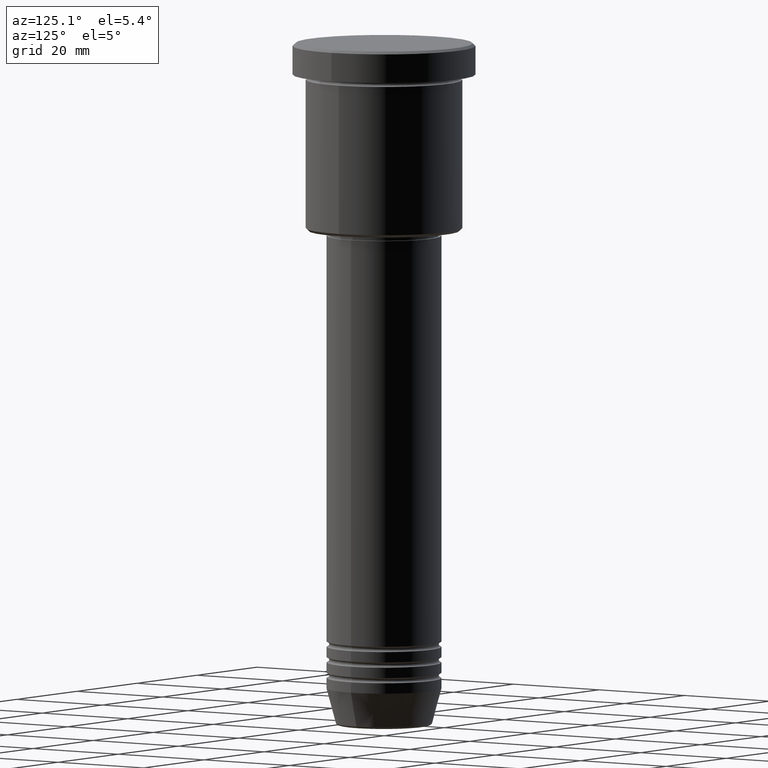
[diagram: clean part render]
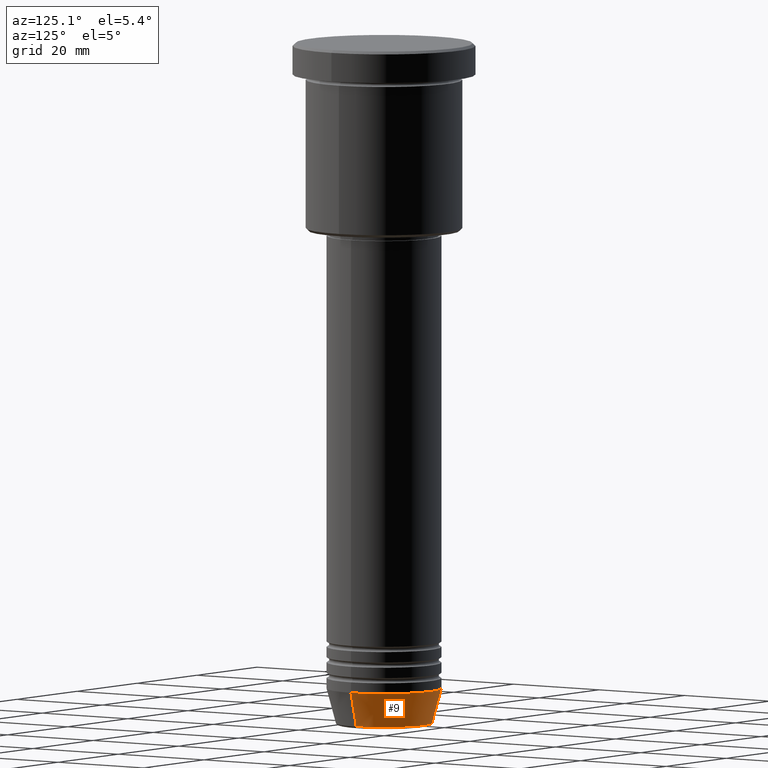
[diagram: same view with one face highlighted and labeled with its STEP entity id]
A machine part, auxiliary view. The second image highlights one B-rep face of the part: STEP entity #9.
In plain terms, the highlighted conical surface has half-angle 15 deg.
Its self-contained STEP definition (entity closure, byte-faithful):
#9 = ADVANCED_FACE ( 'NONE', ( #492 ), #951, .T. ) ;
#16 = VERTEX_POINT ( 'NONE', #1140 ) ;
#42 = CARTESIAN_POINT ( 'NONE',  ( 0.000000000000000000, 0.000000000000000000, -124.0000000000000000 ) ) ;
#71 = AXIS2_PLACEMENT_3D ( 'NONE', #969, #500, #575 ) ;
#81 = CARTESIAN_POINT ( 'NONE',  ( 0.000000000000000000, 0.000000000000000000, -124.0000000000000000 ) ) ;
#115 = ORIENTED_EDGE ( 'NONE', *, *, #559, .T. ) ;
#165 = VERTEX_POINT ( 'NONE', #961 ) ;
#304 = CARTESIAN_POINT ( 'NONE',  ( 11.00000000000000000, 0.000000000000000000, -124.0000000000000000 ) ) ;
#316 = DIRECTION ( 'NONE',  ( -0.000000000000000000, -0.000000000000000000, 1.000000000000000000 ) ) ;
#348 = CARTESIAN_POINT ( 'NONE',  ( -9.223655072137187716, 1.238341722557647004E-15, -130.6294095225512422 ) ) ;
#355 = LINE ( 'NONE', #1110, #506 ) ;
#379 = DIRECTION ( 'NONE',  ( 0.2588190451025213501, 0.000000000000000000, 0.9659258262890680902 ) ) ;
#389 = AXIS2_PLACEMENT_3D ( 'NONE', #81, #316, #671 ) ;
#407 = DIRECTION ( 'NONE',  ( 1.000000000000000000, 0.000000000000000000, 0.000000000000000000 ) ) ;
#492 = FACE_OUTER_BOUND ( 'NONE', #1037, .T. ) ;
#498 = DIRECTION ( 'NONE',  ( -0.000000000000000000, -0.000000000000000000, 1.000000000000000000 ) ) ;
#500 = DIRECTION ( 'NONE',  ( -0.000000000000000000, -0.000000000000000000, 1.000000000000000000 ) ) ;
#506 = VECTOR ( 'NONE', #379, 1000.000000000000000 ) ;
#559 = EDGE_CURVE ( 'NONE', #165, #702, #667, .T. ) ;
#575 = DIRECTION ( 'NONE',  ( 1.000000000000000000, 0.000000000000000000, 0.000000000000000000 ) ) ;
#595 = EDGE_CURVE ( 'NONE', #928, #16, #953, .T. ) ;
#657 = VECTOR ( 'NONE', #664, 1000.000000000000000 ) ;
#664 = DIRECTION ( 'NONE',  ( -0.2588190451025213501, 3.169619151431772337E-17, 0.9659258262890680902 ) ) ;
#667 = CIRCLE ( 'NONE', #71, 9.223655072137187716 ) ;
#671 = DIRECTION ( 'NONE',  ( 1.000000000000000000, 0.000000000000000000, 0.000000000000000000 ) ) ;
#702 = VERTEX_POINT ( 'NONE', #348 ) ;
#748 = AXIS2_PLACEMENT_3D ( 'NONE', #42, #498, #407 ) ;
#775 = EDGE_CURVE ( 'NONE', #165, #928, #355, .T. ) ;
#906 = ORIENTED_EDGE ( 'NONE', *, *, #595, .F. ) ;
#928 = VERTEX_POINT ( 'NONE', #304 ) ;
#930 = ORIENTED_EDGE ( 'NONE', *, *, #948, .T. ) ;
#946 = LINE ( 'NONE', #1137, #657 ) ;
#948 = EDGE_CURVE ( 'NONE', #702, #16, #946, .T. ) ;
#951 = CONICAL_SURFACE ( 'NONE', #748, 11.00000000000000000, 0.2617993877991500740 ) ;
#953 = CIRCLE ( 'NONE', #389, 11.00000000000000000 ) ;
#961 = CARTESIAN_POINT ( 'NONE',  ( 9.223655072137187716, 0.000000000000000000, -130.6294095225512422 ) ) ;
#969 = CARTESIAN_POINT ( 'NONE',  ( 0.000000000000000000, 0.000000000000000000, -130.6294095225512422 ) ) ;
#1037 = EDGE_LOOP ( 'NONE', ( #115, #930, #906, #1078 ) ) ;
#1078 = ORIENTED_EDGE ( 'NONE', *, *, #775, .F. ) ;
#1110 = CARTESIAN_POINT ( 'NONE',  ( 11.00000000000000000, 0.000000000000000000, -124.0000000000000000 ) ) ;
#1137 = CARTESIAN_POINT ( 'NONE',  ( -11.00000000000000000, 1.347111479062088405E-15, -124.0000000000000000 ) ) ;
#1140 = CARTESIAN_POINT ( 'NONE',  ( -11.00000000000000000, 1.347111479062088405E-15, -124.0000000000000000 ) ) ;